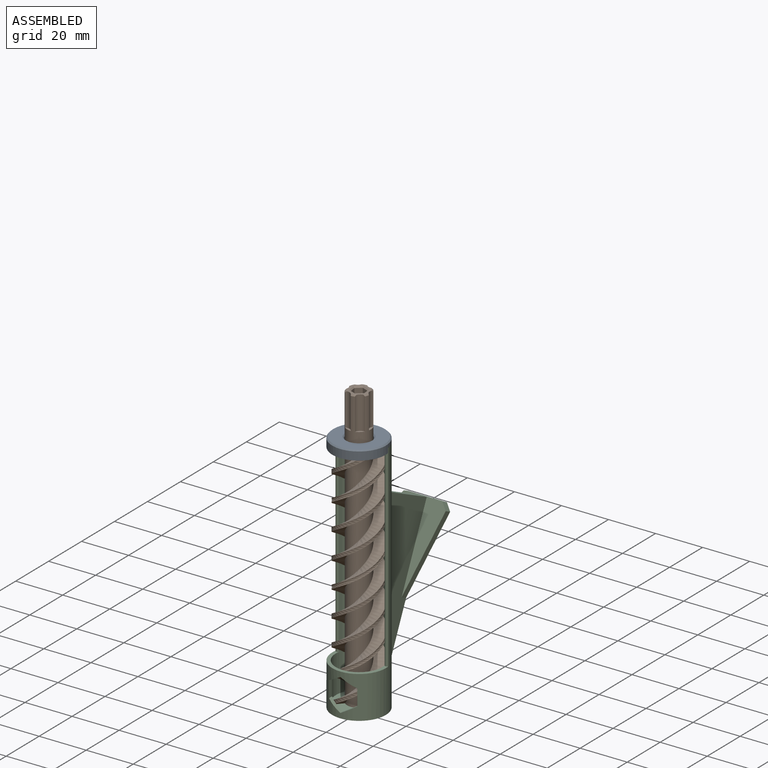
[diagram: assembled view]
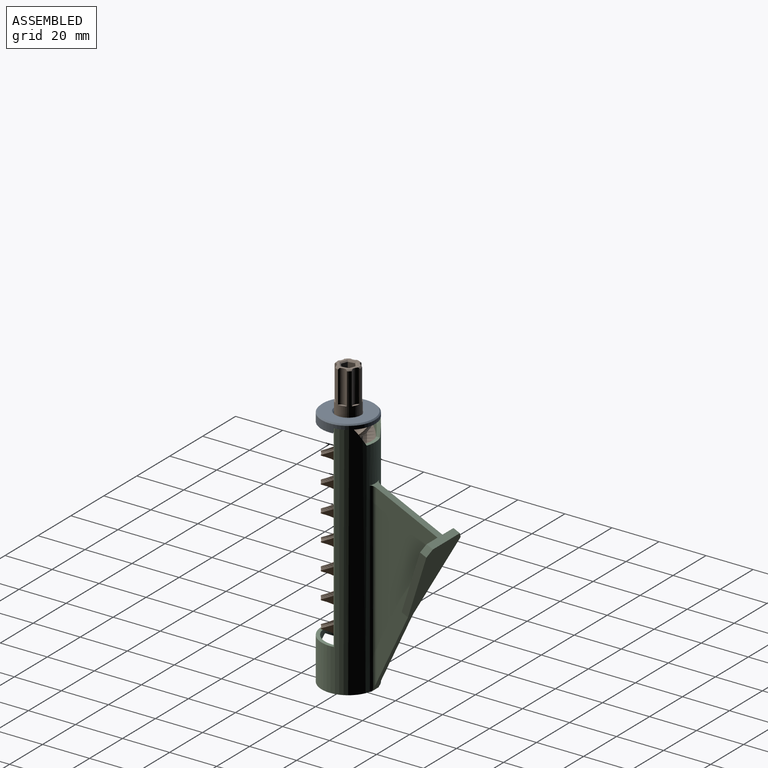
[diagram: assembled view, second angle]
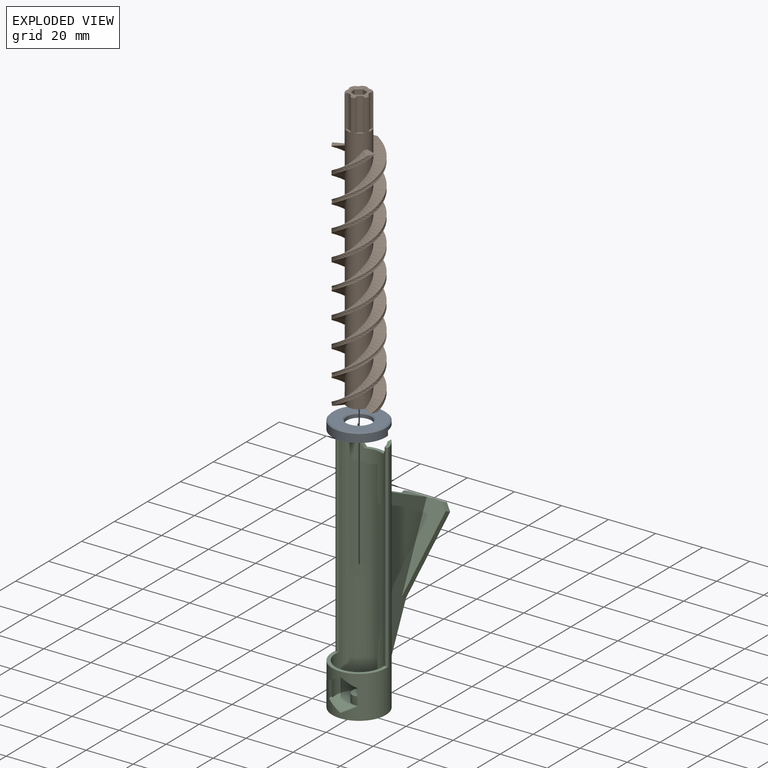
[diagram: exploded view]
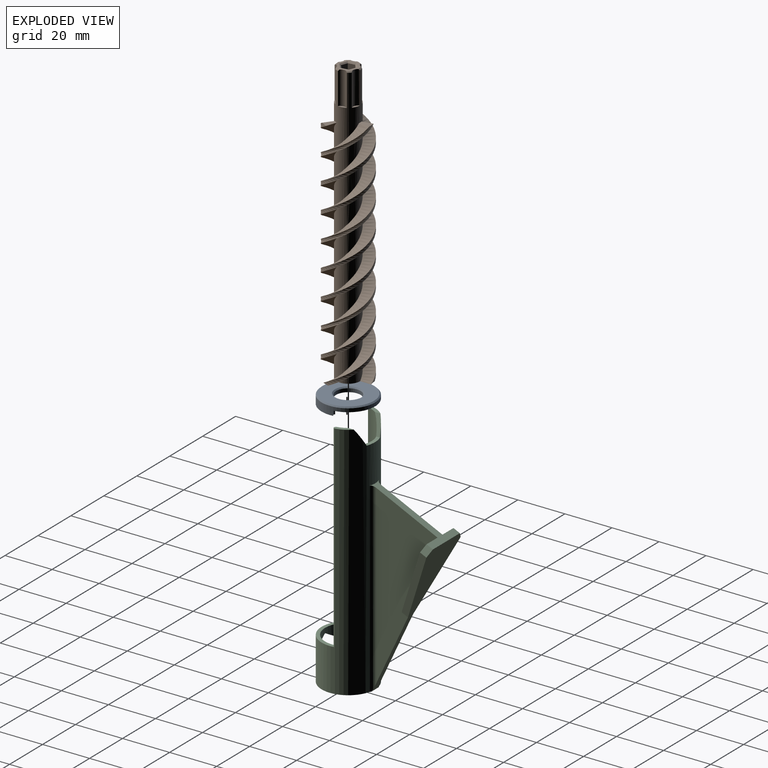
[diagram: exploded view, second angle]
ASSEMBLY  parts=3 mates=2
PART A: 10 faces, bbox 22.7x22.7x4 mm
  f0: plane 22.54x21.24mm, normal (0,0,-1), area 267.7mm2, adj f1,f2,f4,f5,f6
  f1: cylinder r=11.37mm len=22.74mm, axis (0,0,-1), area 184.5mm2, adj f0,f4,f6,f7,f9
  f2: cylinder r=5.2mm len=10.4mm, axis (0,0,-1), area 49mm2, adj f0,f8
  f3: plane 21.74x21.74mm, normal (0,0,1), area 269mm2, adj f8,f9
  f4: cylinder r=0.95mm len=2mm, axis (0,0,1), area 3.5mm2, adj f0,f1,f5,f7
  f5: cylinder r=9.87mm len=19.74mm, axis (0,0,1), area 67mm2, adj f0,f4,f6,f7
  f6: cylinder r=0.95mm len=2mm, axis (0,0,1), area 3.5mm2, adj f0,f1,f5,f7
  f7: plane 22.74x12.85mm, normal (0,0,-1), area 53.4mm2, adj f1,f4,f5,f6
  f8: cone r=5.2mm half-angle=45deg, axis (0,0,1), area 24.2mm2, adj f2,f3
  f9: cone r=11.37mm half-angle=45deg, axis (0,0,-1), area 49.4mm2, adj f1,f3
PART B: 59 faces, bbox 19.8x19.8x120 mm
  f0: plane 9x8.65mm, normal (0,0,1), area 27.4mm2, adj f1,f2,f3,f4,f5,f33,f35,f37
  f1: cone r=4.5mm half-angle=45deg, axis (0,0,-1), area 1.4mm2, adj f0,f13,f43,f45
  f2: cone r=4.5mm half-angle=45deg, axis (0,0,-1), area 1.4mm2, adj f0,f13,f41,f43
  f3: cone r=4.5mm half-angle=45deg, axis (0,0,-1), area 1.4mm2, adj f0,f13,f39,f41
  f4: cone r=4.5mm half-angle=45deg, axis (0,0,-1), area 1.4mm2, adj f0,f13,f37,f39
  f5: cone r=4.5mm half-angle=45deg, axis (0,0,-1), area 1.4mm2, adj f0,f13,f35,f37
  f6: plane 5.09x3.91mm, normal (0,0,1), area 10.3mm2, adj f13,f23,f24,f25
  f7: plane 5.02x4.55mm, normal (0,0,1), area 10.3mm2, adj f13,f26,f27,f28
  f8: bspline ~100x19.8mm, area 784.3mm2, adj f10,f11,f12,f13,f14,f15,f16
  f9: bspline ~100x19.8mm, area 784.4mm2, adj f10,f11,f12,f13,f20,f21,f22
  f10: plane 17.95x15.55mm, normal (0,0,-1), area 66.5mm2, adj f8,f9,f12,f16,f18,f19,f22,f23
  f11: plane 4.79x2.98mm, normal (0,0,1), area 10.3mm2, adj f8,f9,f12,f13
  f12: bspline ~100x19.8mm, area 302.1mm2, adj f8,f9,f10,f11
  f13: cylinder r=5mm len=58.46mm, axis (0,0,-1), area 947.6mm2, adj f1,f2,f3,f4,f5,f6,f7,f8
  f14: cylinder r=5mm len=42.78mm, axis (0,0,-1), area 296.7mm2, adj f8,f13,f15,f24
  f15: cylinder r=5mm len=42.78mm, axis (0,0,-1), area 296.7mm2, adj f8,f14,f16,f24
  f16: cylinder r=5mm len=14.93mm, axis (0,0,-1), area 90.8mm2, adj f8,f10,f15,f24
  f17: cylinder r=5mm len=42.78mm, axis (0,0,-1), area 296.7mm2, adj f13,f18,f23,f27
  f18: cylinder r=5mm len=37.15mm, axis (0,0,-1), area 281.8mm2, adj f10,f17,f19,f23,f27
  f19: cylinder r=5mm len=3.81mm, axis (0,0,-1), area 6.9mm2, adj f10,f18,f23
  f20: cylinder r=5mm len=42.78mm, axis (0,0,-1), area 296.7mm2, adj f9,f13,f21,f26
  f21: cylinder r=5mm len=42.78mm, axis (0,0,-1), area 296.7mm2, adj f9,f20,f22,f26
  f22: cylinder r=5mm len=26.04mm, axis (0,0,-1), area 189.8mm2, adj f9,f10,f21,f26
  f23: bspline ~99.4x19.22mm, area 784.3mm2, adj f6,f10,f13,f17,f18,f19,f25
  f24: bspline ~99.4x19.22mm, area 784.4mm2, adj f6,f10,f13,f14,f15,f16,f25
  f25: bspline ~100x19.8mm, area 302.1mm2, adj f6,f10,f23,f24
  f26: bspline ~100x19.8mm, area 784.3mm2, adj f7,f10,f13,f20,f21,f22,f28
  f27: bspline ~100x19.8mm, area 784.4mm2, adj f7,f10,f13,f17,f18,f28
  f28: bspline ~100x19.8mm, area 302.1mm2, adj f7,f10,f26,f27
  f29: cylinder r=3.2mm len=7.5mm, axis (0,0,-1), area 150.8mm2, adj f31,f32
  f30: plane 2.4x2.4mm, normal (0,0,-1), area 4.5mm2, adj f31
  f31: cone r=1.2mm half-angle=45deg, axis (0,0,-1), area 39.1mm2, adj f29,f30
  f32: cone r=3.2mm half-angle=45deg, axis (0,0,-1), area 15.3mm2, adj f10,f29
  f33: cone r=4.5mm half-angle=45deg, axis (0,0,-1), area 1.4mm2, adj f0,f13,f35,f45
  f34: plane 3.45x1mm, normal (0,0,1), area 2.4mm2, adj f13,f35
  f35: cylinder r=2.5mm len=14mm, axis (0,0,1), area 53.1mm2, adj f0,f5,f13,f33,f34
  f36: plane 2.99x1.8mm, normal (0,0,1), area 2.4mm2, adj f13,f37
  f37: cylinder r=2.5mm len=14mm, axis (0,0,1), area 53.1mm2, adj f0,f4,f5,f13,f36
  f38: plane 2.99x1.8mm, normal (0,0,1), area 2.4mm2, adj f13,f39
  f39: cylinder r=2.5mm len=14mm, axis (0,0,1), area 53.1mm2, adj f0,f3,f4,f13,f38
  f40: plane 3.45x1mm, normal (0,0,1), area 2.4mm2, adj f13,f41
  f41: cylinder r=2.5mm len=14mm, axis (0,0,1), area 53.1mm2, adj f0,f2,f3,f13,f40
  f42: plane 2.99x1.8mm, normal (0,0,1), area 2.4mm2, adj f13,f43
  f43: cylinder r=2.5mm len=14mm, axis (0,0,1), area 53.1mm2, adj f0,f1,f2,f13,f42
  f44: plane 2.99x1.8mm, normal (0,0,1), area 2.4mm2, adj f13,f45
  f45: cylinder r=2.5mm len=14mm, axis (0,0,1), area 53.1mm2, adj f0,f1,f13,f33,f44
  f46: plane 19.5x2.89mm, normal (0,-1,0), area 56.3mm2, adj f47,f51,f52,f54
  f47: plane 19.5x2.5mm, normal (0.87,-0.5,0), area 56.3mm2, adj f46,f48,f52,f53
  f48: plane 19.5x2.5mm, normal (0.87,0.5,0), area 56.3mm2, adj f47,f49,f52,f55
  f49: plane 19.5x2.89mm, normal (0,1,0), area 56.3mm2, adj f48,f50,f52,f57
  f50: plane 19.5x2.5mm, normal (-0.87,0.5,0), area 56.3mm2, adj f49,f51,f52,f58
  f51: plane 19.5x2.5mm, normal (-0.87,-0.5,0), area 56.3mm2, adj f46,f50,f52,f56
  f52: plane 5.77x5mm, normal (0,0,1), area 21.7mm2, adj f46,f47,f48,f49,f50,f51
  f53: plane 3x2.02mm, normal (0.61,-0.35,0.71), area 2.2mm2, adj f0,f47,f54,f55
  f54: plane 3.46x0.5mm, normal (0,-0.71,0.71), area 2.2mm2, adj f0,f46,f53,f56
  f55: plane 3x2.02mm, normal (0.61,0.35,0.71), area 2.2mm2, adj f0,f48,f53,f57
  f56: plane 3x2.02mm, normal (-0.61,-0.35,0.71), area 2.2mm2, adj f0,f51,f54,f58
  f57: plane 3.46x0.5mm, normal (0,0.71,0.71), area 2.2mm2, adj f0,f49,f55,f58
  f58: plane 3x2.02mm, normal (-0.61,0.35,0.71), area 2.2mm2, adj f0,f50,f56,f57
PART C: 33 faces, bbox 22.7x53x102 mm
  f0: cylinder r=11.37mm len=102mm, axis (0,0,1), area 3237.6mm2, adj f1,f2,f6,f7,f8,f9,f11,f13
  f1: plane 6.81x3.11mm, normal (0,0,1), area 9.2mm2, adj f0,f3,f9,f28
  f2: plane 6.81x3.11mm, normal (0,0,1), area 9.2mm2, adj f0,f3,f8,f29
  f3: cylinder r=9.87mm len=100mm, axis (0,0,-1), area 3066.8mm2, adj f1,f2,f5,f7,f8,f9,f21,f22
  f4: plane 75.13x26.06mm, normal (-1,0,0), area 972.6mm2, adj f11,f12,f14,f15,f16
  f5: plane 19.74x19.74mm, normal (0,0,1), area 277.6mm2, adj f3,f30
  f6: plane 22.74x22.74mm, normal (0,0,-1), area 406.4mm2, adj f0,f12,f13,f14
  f7: plane 22.74x13.44mm, normal (0,0,1), area 54.1mm2, adj f0,f3,f8,f9
  f8: cylinder r=0.75mm len=84mm, axis (0,0,1), area 197.9mm2, adj f0,f2,f3,f7
  f9: cylinder r=0.75mm len=84mm, axis (0,0,1), area 197.9mm2, adj f0,f1,f3,f7
  f10: plane 75.13x26.06mm, normal (1,0,0), area 972.6mm2, adj f11,f12,f13,f17,f18
  f11: plane 30.71x16.35mm, normal (0,0.42,0.91), area 141.6mm2, adj f0,f4,f10,f12,f13,f14,f16,f18
  f12: plane 65x30.31mm, normal (0,0.91,-0.42), area 557.5mm2, adj f4,f6,f10,f11,f13,f14,f15,f17
  f13: cylinder r=2mm len=79.32mm, axis (0,0,1), area 203.5mm2, adj f0,f6,f10,f11,f12
  f14: cylinder r=2mm len=79.32mm, axis (0,0,1), area 203.5mm2, adj f0,f4,f6,f11,f12
  f15: plane 31.37x16.76mm, normal (-0.97,-0.11,-0.23), area 103.2mm2, adj f4,f12,f16,f19
  f16: plane 32.73x15.26mm, normal (0,-0.91,0.42), area 170.4mm2, adj f4,f11,f15,f19
  f17: plane 31.37x16.76mm, normal (0.97,-0.11,-0.23), area 103.2mm2, adj f10,f12,f18,f20
  f18: plane 32.73x15.26mm, normal (0,-0.91,0.42), area 170.4mm2, adj f10,f11,f17,f20
  f19: plane 3.94x3.89mm, normal (-0.79,0.26,0.55), area 11mm2, adj f11,f12,f15,f16
  f20: plane 3.94x3.89mm, normal (0.79,0.26,0.55), area 11mm2, adj f11,f12,f17,f18
  f21: plane 6x3.53mm, normal (0.5,0,-0.87), area 11mm2, adj f0,f3,f22,f26
  f22: plane 6.93x1.82mm, normal (1,0,0), area 12.6mm2, adj f0,f3,f21,f23
  f23: plane 6x3.53mm, normal (0.5,0,0.87), area 11mm2, adj f0,f3,f22,f24
  f24: plane 6x3.53mm, normal (-0.5,0,0.87), area 11mm2, adj f0,f3,f23,f25
  f25: plane 6.93x1.82mm, normal (-1,0,0), area 12.6mm2, adj f0,f3,f24,f26
  f26: plane 6x3.53mm, normal (-0.5,0,-0.87), area 11mm2, adj f0,f3,f21,f25
  f27: plane 8.08x2.37mm, normal (0,0,1), area 12.4mm2, adj f0,f3,f28,f29
  f28: plane 7x4.97mm, normal (-0.87,0,0.5), area 15.2mm2, adj f0,f1,f3,f27
  f29: plane 7x4.97mm, normal (0.87,0,0.5), area 15.2mm2, adj f0,f2,f3,f27
  f30: cylinder r=3mm len=6mm, axis (0,0,-1), area 66mm2, adj f5,f32
  f31: plane 5x5mm, normal (0,0,1), area 19.6mm2, adj f32
  f32: cone r=2.5mm half-angle=45deg, axis (0,0,-1), area 12.2mm2, adj f30,f31
PLACE A at identity
PLACE B rot(axis=(0,0,-1),141.2deg) t=(0,0,0)mm
PLACE C at identity fixed
MATE fastened C.f0 <-> A.f1  axis (0,0,1) through (0,0,100)mm
MATE revolute B.f1 <-> C.f0  axis (0,0,-1) through (0,0,0)mm
